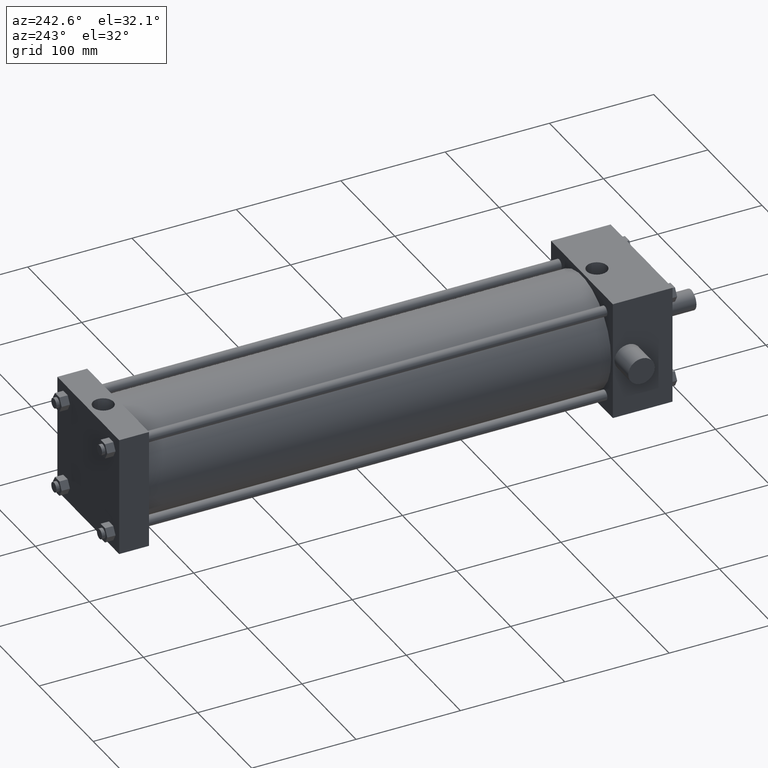
[diagram: clean part render]
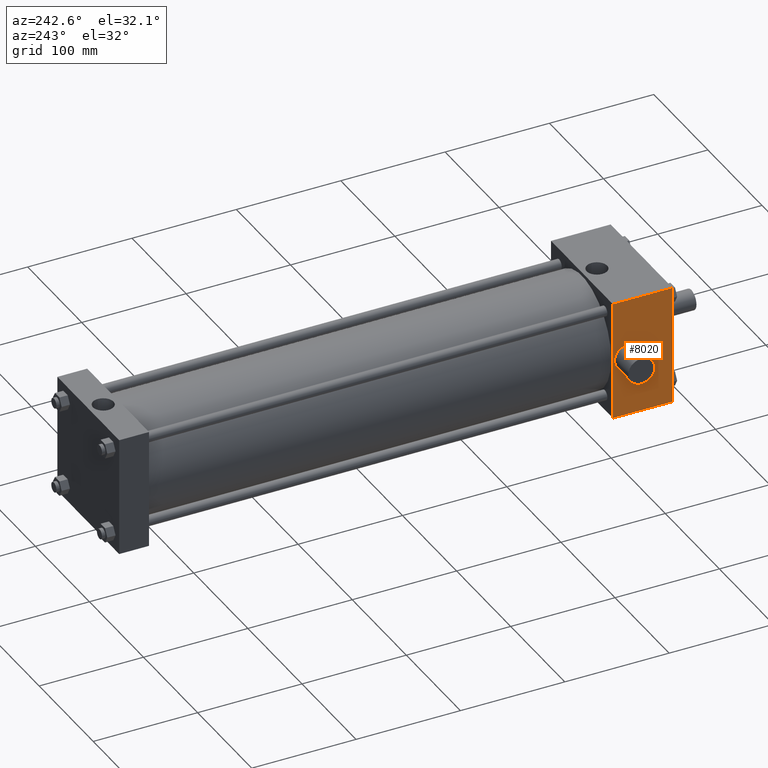
[diagram: same view with one face highlighted and labeled with its STEP entity id]
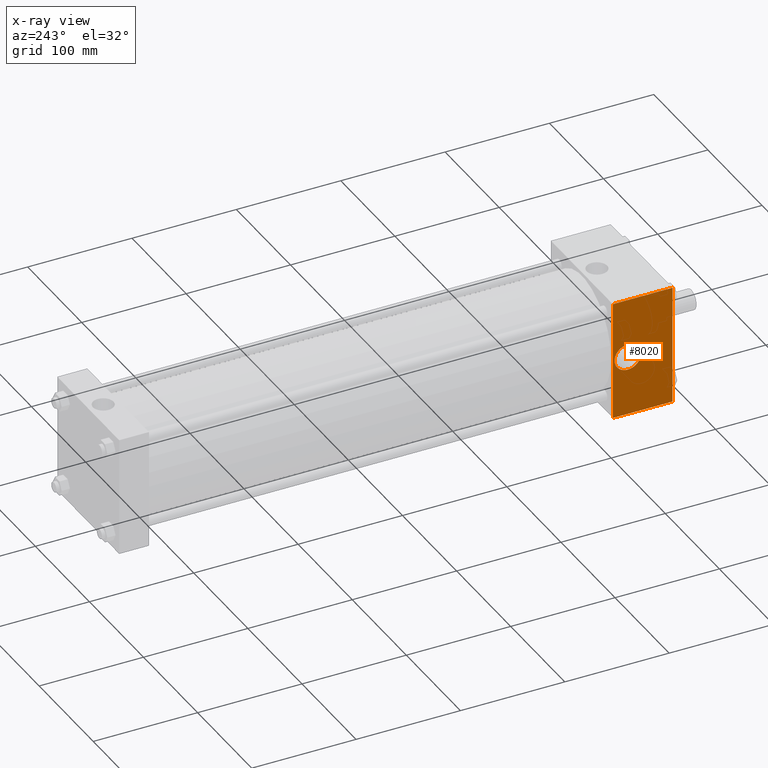
[diagram: x-ray of the same camera — body ghosted, the highlighted face saturated]
A machine part, auxiliary view. The second image highlights one B-rep face of the part: STEP entity #8020.
The next image is the same camera in x-ray: the body ghosted, the highlighted face saturated — about 0% of this face is hidden behind the body in this view.
In plain terms, the highlighted planar face has unit normal (-1, 0, 0).
Its self-contained STEP definition (entity closure, byte-faithful):
#485=VERTEX_POINT('',#487);
#487=CARTESIAN_POINT('',(-5.715000000E+001,7.620000000E+001,-5.715000000E+001));
#489=EDGE_CURVE('',#494,#485,#490,.T.);
#490=LINE('',#491,#492);
#491=CARTESIAN_POINT('',(-5.715000000E+001,7.620000000E+001,5.715000000E+001));
#492=VECTOR('',#493,1.0E+000);
#493=DIRECTION('',(0.0E+000,0.0E+000,-1.0E+000));
#494=VERTEX_POINT('',#495);
#495=CARTESIAN_POINT('',(-5.715000000E+001,7.620000000E+001,5.715000000E+001));
#569=VERTEX_POINT('',#570);
#570=CARTESIAN_POINT('',(-5.715000000E+001,1.905000000E+001,-5.715000000E+001));
#571=EDGE_CURVE('',#485,#569,#572,.T.);
#572=LINE('',#573,#574);
#573=CARTESIAN_POINT('',(-5.715000000E+001,7.620000000E+001,-5.715000000E+001));
#574=VECTOR('',#575,1.0E+000);
#575=DIRECTION('',(0.0E+000,-1.0E+000,0.0E+000));
#598=EDGE_CURVE('',#494,#603,#599,.T.);
#599=LINE('',#600,#601);
#600=CARTESIAN_POINT('',(-5.715000000E+001,7.620000000E+001,5.715000000E+001));
#601=VECTOR('',#602,1.0E+000);
#602=DIRECTION('',(0.0E+000,-1.0E+000,0.0E+000));
#603=VERTEX_POINT('',#604);
#604=CARTESIAN_POINT('',(-5.715000000E+001,1.905000000E+001,5.715000000E+001));
#631=FACE_OUTER_BOUND('',#633,.T.);
#632=FACE_BOUND('',#634,.T.);
#633=EDGE_LOOP('',(#635,#636,#637,#638));
#634=EDGE_LOOP('',(#644));
#635=ORIENTED_EDGE('',*,*,#489,.T.);
#636=ORIENTED_EDGE('',*,*,#571,.T.);
#637=ORIENTED_EDGE('',*,*,#639,.F.);
#638=ORIENTED_EDGE('',*,*,#598,.F.);
#639=EDGE_CURVE('',#603,#569,#640,.T.);
#640=LINE('',#641,#642);
#641=CARTESIAN_POINT('',(-5.715000000E+001,1.905000000E+001,5.715000000E+001));
#642=VECTOR('',#643,1.0E+000);
#643=DIRECTION('',(0.0E+000,0.0E+000,-1.0E+000));
#644=ORIENTED_EDGE('',*,*,#645,.T.);
#645=EDGE_CURVE('',#651,#651,#646,.T.);
#646=CIRCLE('',#647,1.270000000E+001);
#647=AXIS2_PLACEMENT_3D('',#648,#649,#650);
#648=CARTESIAN_POINT('',(-5.715000000E+001,6.191250000E+001,0.000000000E+000));
#649=DIRECTION('',(1.0E+000,0.0E+000,0.0E+000));
#650=DIRECTION('',(0.0E+000,-1.0E+000,0.0E+000));
#651=VERTEX_POINT('',#652);
#652=CARTESIAN_POINT('',(-5.715000000E+001,4.921250000E+001,0.000000000E+000));
#653=PLANE('',#654);
#654=AXIS2_PLACEMENT_3D('',#655,#656,#657);
#655=CARTESIAN_POINT('',(-5.715000000E+001,7.620000000E+001,5.715000000E+001));
#656=DIRECTION('',(-1.0E+000,0.0E+000,0.0E+000));
#657=DIRECTION('',(0.0E+000,0.0E+000,1.0E+000));
#8020=ADVANCED_FACE('',(#631,#632),#653,.T.);